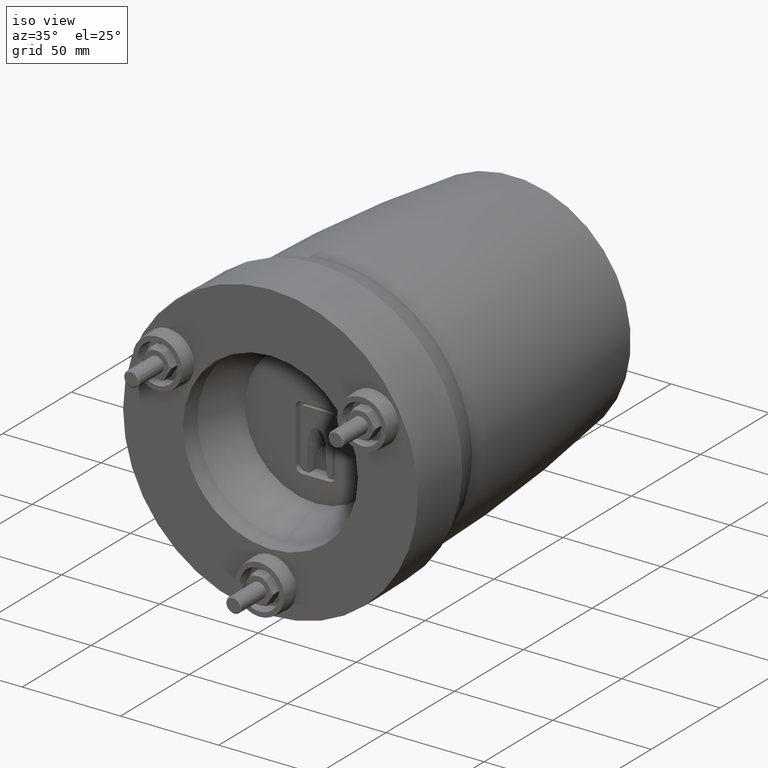
[diagram: clean part render]
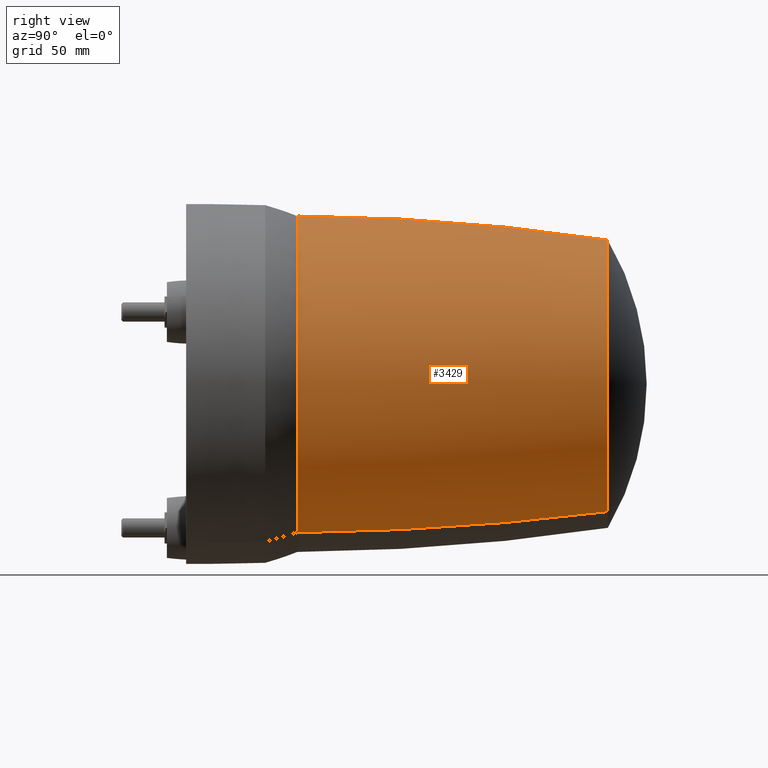
[diagram: tour spotlight — one face highlighted and labeled with its STEP entity id]
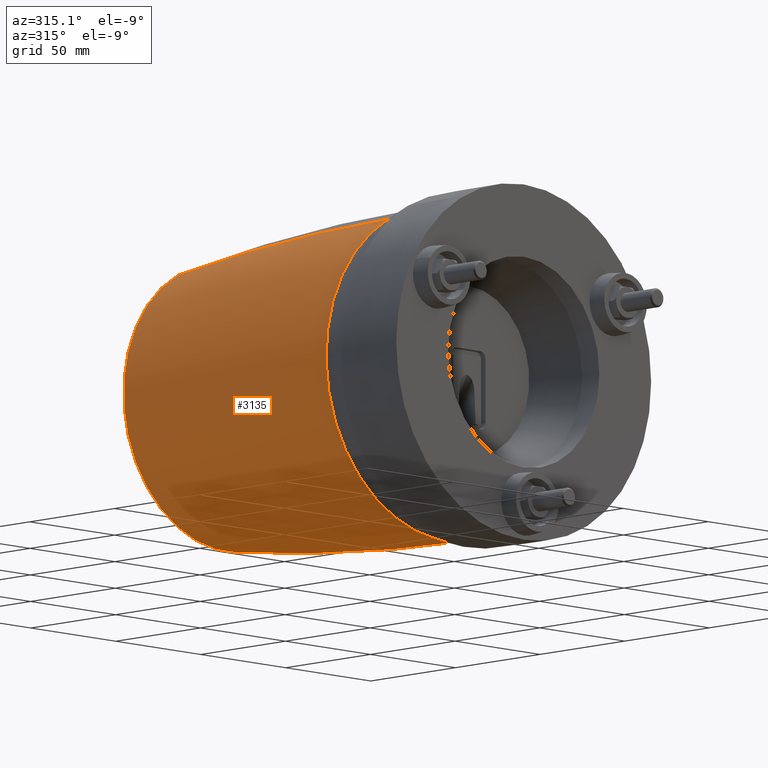
[diagram: tour spotlight — one face highlighted and labeled with its STEP entity id]
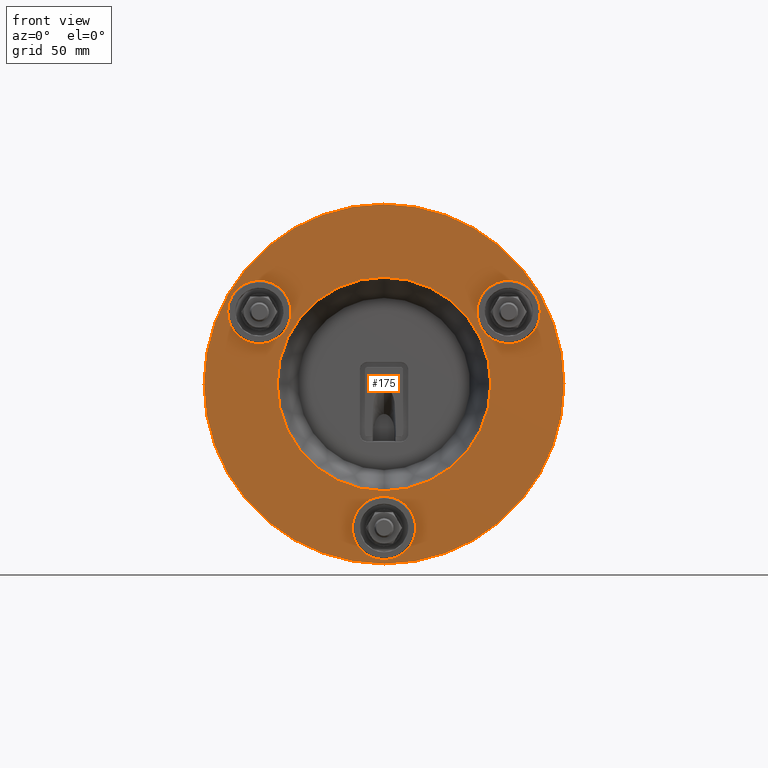
[diagram: tour spotlight — one face highlighted and labeled with its STEP entity id]
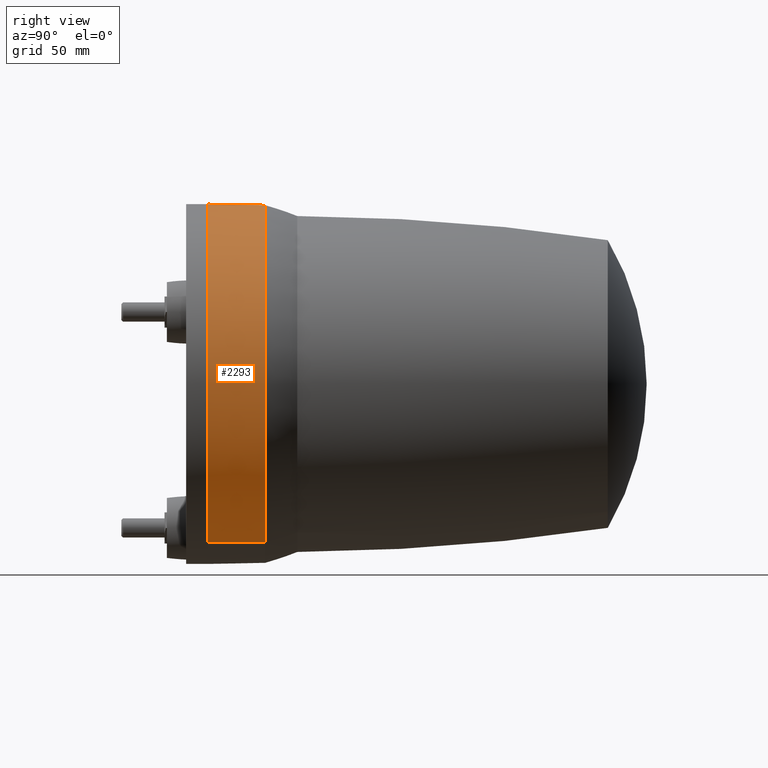
[diagram: tour spotlight — one face highlighted and labeled with its STEP entity id]
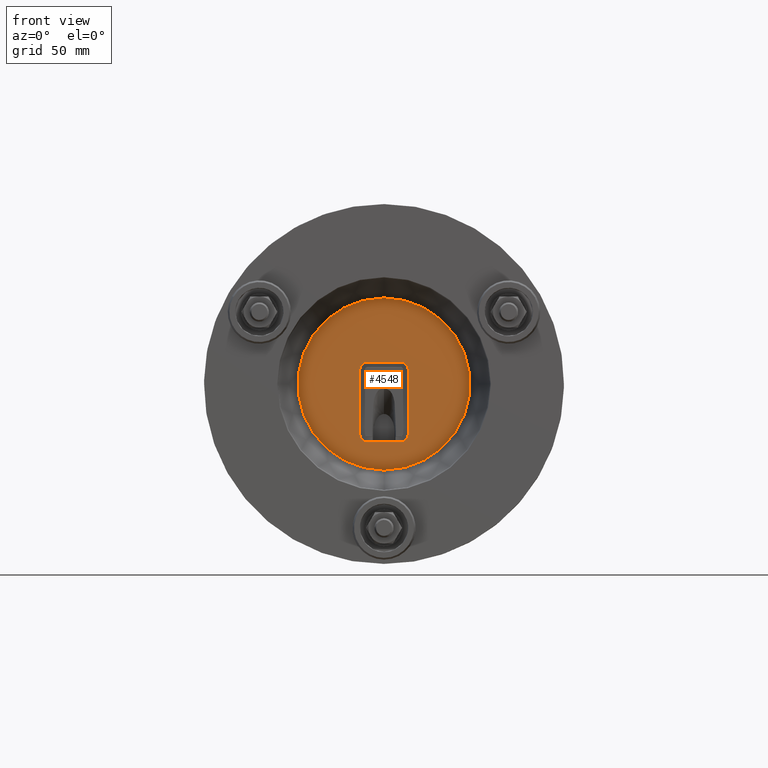
[diagram: tour spotlight — one face highlighted and labeled with its STEP entity id]
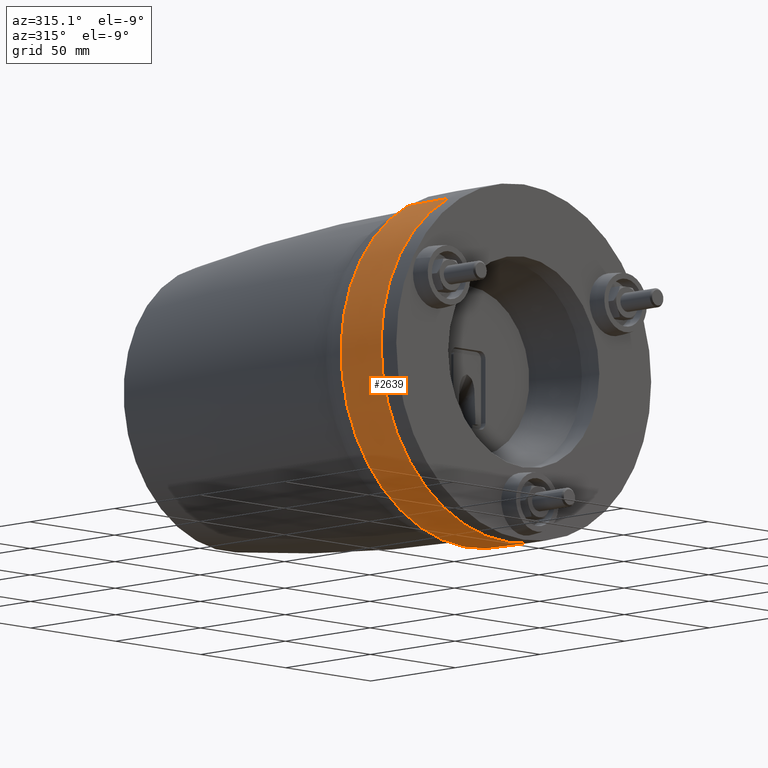
[diagram: tour spotlight — one face highlighted and labeled with its STEP entity id]
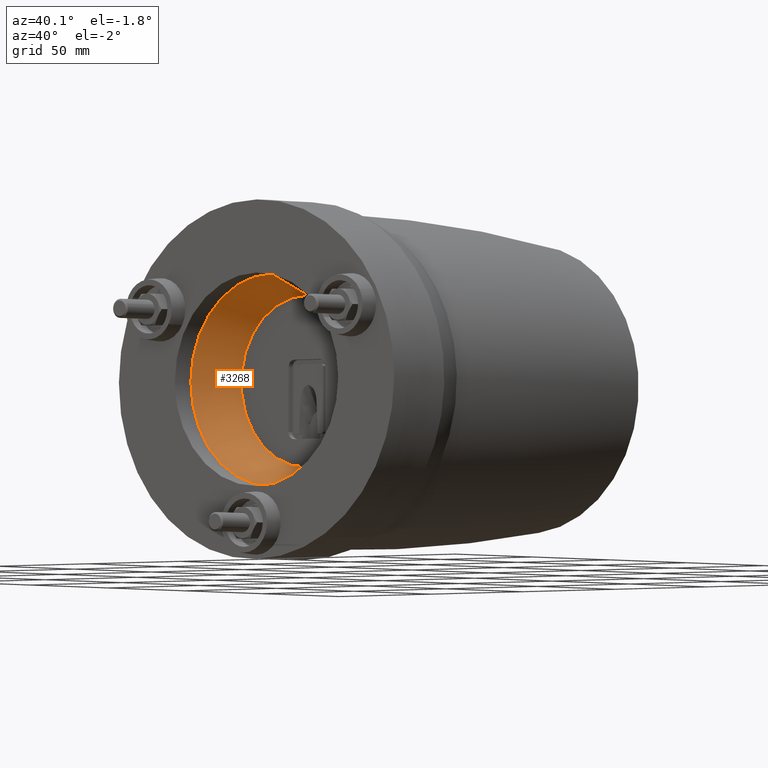
[diagram: tour spotlight — one face highlighted and labeled with its STEP entity id]
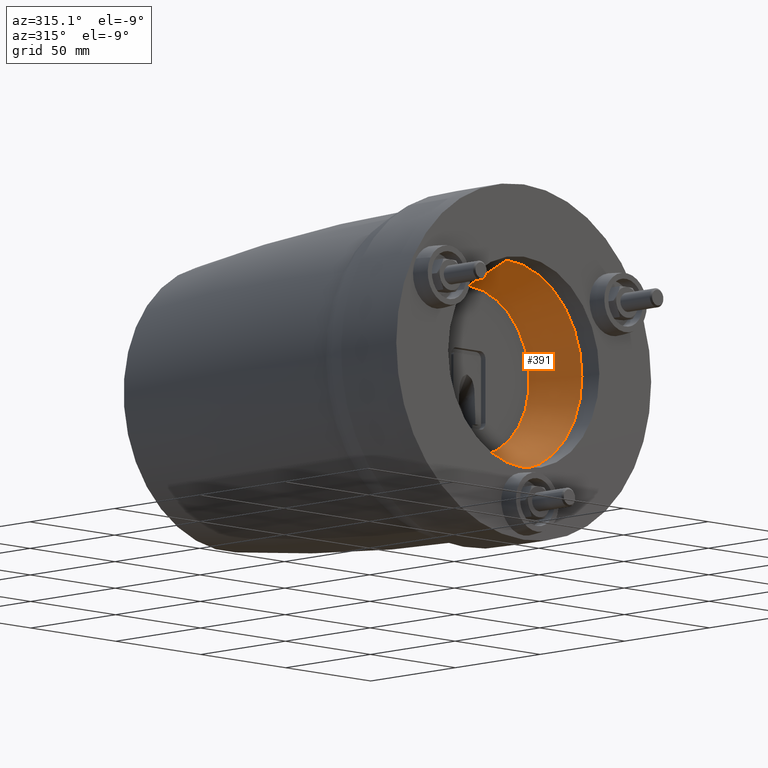
[diagram: tour spotlight — one face highlighted and labeled with its STEP entity id]
A machine part: a face-by-face anatomy tour. The part has 144 B-rep faces; the first image is the clean iso view, then the 8 largest visible faces are spotlighted one at a time (largest first), each with its STEP entity span.

Face 1 — right view, entity #3429. In plain terms, the highlighted toroidal blend (fillet) surface has major radius 929.769 mm and minor (blend) radius 1000 mm.
Definition (entity closure, byte-faithful):
#26 = CARTESIAN_POINT ( 'NONE',  ( -32.95647398094602920, 55.32575010273159677, 61.94328763096225288 ) ) ;
#162 = DIRECTION ( 'NONE',  ( -0.8828256043525187780, -4.930380657631322689E-32, -0.4697009179250238864 ) ) ;
#276 = CARTESIAN_POINT ( 'NONE',  ( 32.95647398094607183, 55.32575010273160387, -61.94328763096225998 ) ) ;
#422 = DIRECTION ( 'NONE',  ( 0.8828256043525186669, 3.697785493223491743E-32, 0.4697009179250239974 ) ) ;
#453 = ORIENTED_EDGE ( 'NONE', *, *, #909, .F. ) ;
#595 = DIRECTION ( 'NONE',  ( -0.4697009179250243305, 0.000000000000000000, 0.8828256043525186669 ) ) ;
#607 = AXIS2_PLACEMENT_3D ( 'NONE', #3545, #2096, #824 ) ;
#824 = DIRECTION ( 'NONE',  ( 0.8828256043525186669, 0.000000000000000000, 0.4697009179250242750 ) ) ;
#909 = EDGE_CURVE ( 'NONE', #1415, #1906, #3112, .T. ) ;
#1300 = CARTESIAN_POINT ( 'NONE',  ( -1.695424884558989830E-15, 184.7802510757699963, 3.825679464475854360E-14 ) ) ;
#1379 = AXIS2_PLACEMENT_3D ( 'NONE', #2356, #2337, #1999 ) ;
#1415 = VERTEX_POINT ( 'NONE', #26 ) ;
#1461 = CIRCLE ( 'NONE', #3921, 1000.000000000000000 ) ;
#1668 = DIRECTION ( 'NONE',  ( 0.000000000000000000, -1.000000000000000000, 0.000000000000000000 ) ) ;
#1906 = VERTEX_POINT ( 'NONE', #2856 ) ;
#1984 = VERTEX_POINT ( 'NONE', #4718 ) ;
#1999 = DIRECTION ( 'NONE',  ( -0.4697009179250238864, -7.762788453611642376E-17, 0.8828256043525188890 ) ) ;
#2002 = CIRCLE ( 'NONE', #607, 70.16480641881085489 ) ;
#2096 = DIRECTION ( 'NONE',  ( 0.000000000000000000, -1.000000000000000000, 0.000000000000000000 ) ) ;
#2220 = EDGE_CURVE ( 'NONE', #4169, #1984, #1461, .T. ) ;
#2337 = DIRECTION ( 'NONE',  ( -3.646188862319169167E-17, 1.000000000000000000, 6.853188408020449877E-17 ) ) ;
#2356 = CARTESIAN_POINT ( 'NONE',  ( 1.352387018892753981E-14, 43.82305169212550311, 9.651393083216828307E-15 ) ) ;
#2459 = CIRCLE ( 'NONE', #3849, 60.24665539804175296 ) ;
#2702 = EDGE_LOOP ( 'NONE', ( #3189, #3064, #4742, #453 ) ) ;
#2754 = CARTESIAN_POINT ( 'NONE',  ( 436.7133693656217019, 43.82305169212557416, -820.8239105476304758 ) ) ;
#2856 = CARTESIAN_POINT ( 'NONE',  ( -28.29790934237279387, 184.7802510757699963, 53.18728996199419612 ) ) ;
#3064 = ORIENTED_EDGE ( 'NONE', *, *, #2220, .T. ) ;
#3112 = CIRCLE ( 'NONE', #3800, 1000.000000000000000 ) ;
#3133 = DIRECTION ( 'NONE',  ( 0.4697009179250239974, 0.000000000000000000, -0.8828256043525186669 ) ) ;
#3189 = ORIENTED_EDGE ( 'NONE', *, *, #4031, .F. ) ;
#3429 = ADVANCED_FACE ( 'NONE', ( #3512 ), #3999, .T. ) ;
#3489 = CARTESIAN_POINT ( 'NONE',  ( -436.7133693656218156, 43.82305169212543206, 820.8239105476303621 ) ) ;
#3512 = FACE_OUTER_BOUND ( 'NONE', #2702, .T. ) ;
#3545 = CARTESIAN_POINT ( 'NONE',  ( 1.352387018892753981E-14, 55.32575010273160387, 9.651393083216828307E-15 ) ) ;
#3800 = AXIS2_PLACEMENT_3D ( 'NONE', #2754, #162, #4619 ) ;
#3849 = AXIS2_PLACEMENT_3D ( 'NONE', #1300, #1668, #595 ) ;
#3921 = AXIS2_PLACEMENT_3D ( 'NONE', #3489, #422, #3133 ) ;
#3999 = TOROIDAL_SURFACE ( 'NONE', #1379, -929.7690353573719904, 1000.000000000000000 ) ;
#4029 = EDGE_CURVE ( 'NONE', #1984, #1906, #2459, .T. ) ;
#4031 = EDGE_CURVE ( 'NONE', #4169, #1415, #2002, .T. ) ;
#4169 = VERTEX_POINT ( 'NONE', #276 ) ;
#4619 = DIRECTION ( 'NONE',  ( -0.4697009179250238864, 0.000000000000000000, 0.8828256043525187780 ) ) ;
#4718 = CARTESIAN_POINT ( 'NONE',  ( 28.29790934237277966, 184.7802510757699963, -53.18728996199416059 ) ) ;
#4742 = ORIENTED_EDGE ( 'NONE', *, *, #4029, .T. ) ;

Face 2 — auxiliary view, entity #3135. In plain terms, the highlighted toroidal blend (fillet) surface has major radius 929.769 mm and minor (blend) radius 1000 mm.
Definition (entity closure, byte-faithful):
#26 = CARTESIAN_POINT ( 'NONE',  ( -32.95647398094602920, 55.32575010273159677, 61.94328763096225288 ) ) ;
#160 = DIRECTION ( 'NONE',  ( -3.646188862319169167E-17, 1.000000000000000000, 6.853188408020449877E-17 ) ) ;
#162 = DIRECTION ( 'NONE',  ( -0.8828256043525187780, -4.930380657631322689E-32, -0.4697009179250238864 ) ) ;
#276 = CARTESIAN_POINT ( 'NONE',  ( 32.95647398094607183, 55.32575010273160387, -61.94328763096225998 ) ) ;
#404 = EDGE_LOOP ( 'NONE', ( #1568, #1052, #3345, #3374 ) ) ;
#422 = DIRECTION ( 'NONE',  ( 0.8828256043525186669, 3.697785493223491743E-32, 0.4697009179250239974 ) ) ;
#475 = FACE_OUTER_BOUND ( 'NONE', #404, .T. ) ;
#793 = EDGE_CURVE ( 'NONE', #1415, #4169, #2796, .T. ) ;
#909 = EDGE_CURVE ( 'NONE', #1415, #1906, #3112, .T. ) ;
#1052 = ORIENTED_EDGE ( 'NONE', *, *, #793, .F. ) ;
#1062 = AXIS2_PLACEMENT_3D ( 'NONE', #2451, #1737, #3926 ) ;
#1140 = TOROIDAL_SURFACE ( 'NONE', #1993, -929.7690353573719904, 1000.000000000000000 ) ;
#1415 = VERTEX_POINT ( 'NONE', #26 ) ;
#1461 = CIRCLE ( 'NONE', #3921, 1000.000000000000000 ) ;
#1555 = CARTESIAN_POINT ( 'NONE',  ( 1.352387018892753981E-14, 55.32575010273160387, 9.651393083216828307E-15 ) ) ;
#1568 = ORIENTED_EDGE ( 'NONE', *, *, #2220, .F. ) ;
#1627 = DIRECTION ( 'NONE',  ( -0.4697009179250238864, -7.762788453611642376E-17, 0.8828256043525188890 ) ) ;
#1737 = DIRECTION ( 'NONE',  ( 0.000000000000000000, -1.000000000000000000, 0.000000000000000000 ) ) ;
#1876 = AXIS2_PLACEMENT_3D ( 'NONE', #1555, #3651, #4061 ) ;
#1906 = VERTEX_POINT ( 'NONE', #2856 ) ;
#1984 = VERTEX_POINT ( 'NONE', #4718 ) ;
#1993 = AXIS2_PLACEMENT_3D ( 'NONE', #4555, #160, #1627 ) ;
#2142 = CIRCLE ( 'NONE', #1062, 60.24665539804175296 ) ;
#2220 = EDGE_CURVE ( 'NONE', #4169, #1984, #1461, .T. ) ;
#2451 = CARTESIAN_POINT ( 'NONE',  ( -1.695424884558989830E-15, 184.7802510757699963, 3.825679464475854360E-14 ) ) ;
#2754 = CARTESIAN_POINT ( 'NONE',  ( 436.7133693656217019, 43.82305169212557416, -820.8239105476304758 ) ) ;
#2796 = CIRCLE ( 'NONE', #1876, 70.16480641881085489 ) ;
#2856 = CARTESIAN_POINT ( 'NONE',  ( -28.29790934237279387, 184.7802510757699963, 53.18728996199419612 ) ) ;
#3112 = CIRCLE ( 'NONE', #3800, 1000.000000000000000 ) ;
#3133 = DIRECTION ( 'NONE',  ( 0.4697009179250239974, 0.000000000000000000, -0.8828256043525186669 ) ) ;
#3135 = ADVANCED_FACE ( 'NONE', ( #475 ), #1140, .T. ) ;
#3345 = ORIENTED_EDGE ( 'NONE', *, *, #909, .T. ) ;
#3374 = ORIENTED_EDGE ( 'NONE', *, *, #3528, .T. ) ;
#3489 = CARTESIAN_POINT ( 'NONE',  ( -436.7133693656218156, 43.82305169212543206, 820.8239105476303621 ) ) ;
#3528 = EDGE_CURVE ( 'NONE', #1906, #1984, #2142, .T. ) ;
#3651 = DIRECTION ( 'NONE',  ( 0.000000000000000000, -1.000000000000000000, 0.000000000000000000 ) ) ;
#3800 = AXIS2_PLACEMENT_3D ( 'NONE', #2754, #162, #4619 ) ;
#3921 = AXIS2_PLACEMENT_3D ( 'NONE', #3489, #422, #3133 ) ;
#3926 = DIRECTION ( 'NONE',  ( -0.4697009179250243305, 0.000000000000000000, 0.8828256043525186669 ) ) ;
#4061 = DIRECTION ( 'NONE',  ( 0.8828256043525186669, 0.000000000000000000, 0.4697009179250242750 ) ) ;
#4169 = VERTEX_POINT ( 'NONE', #276 ) ;
#4555 = CARTESIAN_POINT ( 'NONE',  ( 1.352387018892753981E-14, 43.82305169212550311, 9.651393083216828307E-15 ) ) ;
#4619 = DIRECTION ( 'NONE',  ( -0.4697009179250238864, 0.000000000000000000, 0.8828256043525187780 ) ) ;
#4718 = CARTESIAN_POINT ( 'NONE',  ( 28.29790934237277966, 184.7802510757699963, -53.18728996199416059 ) ) ;

Face 3 — front view, entity #175. In plain terms, the highlighted planar face has unit normal (0, -1, 0).
Definition (entity closure, byte-faithful):
#97 = CIRCLE ( 'NONE', #1739, 13.19999999891632569 ) ;
#122 = EDGE_LOOP ( 'NONE', ( #1503, #4709 ) ) ;
#127 = DIRECTION ( 'NONE',  ( 0.000000000000000000, -1.000000000000000000, 0.000000000000000000 ) ) ;
#175 = ADVANCED_FACE ( 'NONE', ( #4529, #1548, #1598, #791, #1273 ), #3072, .T. ) ;
#176 = ORIENTED_EDGE ( 'NONE', *, *, #2755, .F. ) ;
#242 = ORIENTED_EDGE ( 'NONE', *, *, #3645, .F. ) ;
#434 = CARTESIAN_POINT ( 'NONE',  ( -5.237222008264703315E-13, 9.000000000000000000, 75.00000000000000000 ) ) ;
#458 = ORIENTED_EDGE ( 'NONE', *, *, #2850, .F. ) ;
#519 = DIRECTION ( 'NONE',  ( -6.982962677686271444E-15, 0.000000000000000000, 1.000000000000000000 ) ) ;
#522 = CARTESIAN_POINT ( 'NONE',  ( 5.145373498328652206E-13, 9.000000000000000000, -75.00000000000000000 ) ) ;
#531 = CIRCLE ( 'NONE', #1933, 13.19999999891632214 ) ;
#596 = DIRECTION ( 'NONE',  ( 0.000000000000000000, -1.000000000000000000, 0.000000000000000000 ) ) ;
#600 = CARTESIAN_POINT ( 'NONE',  ( -3.108650705590759055E-13, 9.000000000000000000, 44.51764743816125502 ) ) ;
#664 = DIRECTION ( 'NONE',  ( 0.000000000000000000, -1.000000000000000000, 0.000000000000000000 ) ) ;
#672 = DIRECTION ( 'NONE',  ( 0.000000000000000000, -1.000000000000000000, 0.000000000000000000 ) ) ;
#751 = DIRECTION ( 'NONE',  ( 0.000000000000000000, 1.000000000000000000, 0.000000000000000000 ) ) ;
#791 = FACE_BOUND ( 'NONE', #3805, .T. ) ;
#796 = CARTESIAN_POINT ( 'NONE',  ( 5.111528679990674645E-13, 9.000000000000000000, -73.19999999891635412 ) ) ;
#837 = AXIS2_PLACEMENT_3D ( 'NONE', #3893, #127, #919 ) ;
#843 = VERTEX_POINT ( 'NONE', #796 ) ;
#898 = CIRCLE ( 'NONE', #978, 75.00000000000000000 ) ;
#919 = DIRECTION ( 'NONE',  ( -6.833759148348449675E-15, 0.000000000000000000, 1.000000000000000000 ) ) ;
#921 = DIRECTION ( 'NONE',  ( 0.000000000000000000, -1.000000000000000000, 0.000000000000000000 ) ) ;
#978 = AXIS2_PLACEMENT_3D ( 'NONE', #1917, #751, #1895 ) ;
#1045 = EDGE_CURVE ( 'NONE', #3689, #3352, #97, .T. ) ;
#1070 = DIRECTION ( 'NONE',  ( -6.982962677686271444E-15, 0.000000000000000000, 1.000000000000000000 ) ) ;
#1146 = CARTESIAN_POINT ( 'NONE',  ( 40.52998889804995741, 9.000000000000000000, 23.40000000054229901 ) ) ;
#1273 = FACE_OUTER_BOUND ( 'NONE', #122, .T. ) ;
#1320 = VERTEX_POINT ( 'NONE', #434 ) ;
#1437 = ORIENTED_EDGE ( 'NONE', *, *, #1045, .F. ) ;
#1463 = CIRCLE ( 'NONE', #2931, 44.51764743816124792 ) ;
#1477 = CARTESIAN_POINT ( 'NONE',  ( 3.284191870980262333E-13, 9.000000000000000000, -46.80000000108365299 ) ) ;
#1503 = ORIENTED_EDGE ( 'NONE', *, *, #2615, .F. ) ;
#1548 = FACE_BOUND ( 'NONE', #2316, .T. ) ;
#1563 = AXIS2_PLACEMENT_3D ( 'NONE', #3742, #3765, #4197 ) ;
#1598 = FACE_BOUND ( 'NONE', #4359, .T. ) ;
#1632 = CARTESIAN_POINT ( 'NONE',  ( 3.054132311150044224E-13, 9.000000000000000000, -44.51764743816125502 ) ) ;
#1650 = ORIENTED_EDGE ( 'NONE', *, *, #3731, .F. ) ;
#1684 = CIRCLE ( 'NONE', #4693, 13.19999999891632214 ) ;
#1739 = AXIS2_PLACEMENT_3D ( 'NONE', #2434, #596, #2074 ) ;
#1895 = DIRECTION ( 'NONE',  ( -6.982962677686271444E-15, 0.000000000000000000, 1.000000000000000000 ) ) ;
#1917 = CARTESIAN_POINT ( 'NONE',  ( 0.000000000000000000, 9.000000000000000000, 0.000000000000000000 ) ) ;
#1923 = AXIS2_PLACEMENT_3D ( 'NONE', #4026, #3610, #1070 ) ;
#1933 = AXIS2_PLACEMENT_3D ( 'NONE', #3686, #2268, #2190 ) ;
#2074 = DIRECTION ( 'NONE',  ( -6.833759148348449675E-15, 0.000000000000000000, 1.000000000000000000 ) ) ;
#2077 = DIRECTION ( 'NONE',  ( -6.833759148348452042E-15, 0.000000000000000000, 1.000000000000000000 ) ) ;
#2151 = AXIS2_PLACEMENT_3D ( 'NONE', #4659, #4573, #519 ) ;
#2190 = DIRECTION ( 'NONE',  ( -6.982962677686271444E-15, 0.000000000000000000, 1.000000000000000000 ) ) ;
#2257 = EDGE_CURVE ( 'NONE', #3155, #1320, #3774, .T. ) ;
#2268 = DIRECTION ( 'NONE',  ( 0.000000000000000000, -1.000000000000000000, 0.000000000000000000 ) ) ;
#2316 = EDGE_LOOP ( 'NONE', ( #3549, #1437 ) ) ;
#2377 = CARTESIAN_POINT ( 'NONE',  ( -51.96152422706679630, 9.000000000000000000, 29.99999999999915090 ) ) ;
#2434 = CARTESIAN_POINT ( 'NONE',  ( 51.96152422706600049, 9.000000000000000000, 30.00000000000060041 ) ) ;
#2455 = VERTEX_POINT ( 'NONE', #3484 ) ;
#2458 = EDGE_CURVE ( 'NONE', #3352, #3689, #2924, .T. ) ;
#2615 = EDGE_CURVE ( 'NONE', #1320, #3155, #898, .T. ) ;
#2720 = VERTEX_POINT ( 'NONE', #1632 ) ;
#2755 = EDGE_CURVE ( 'NONE', #3045, #843, #4306, .T. ) ;
#2850 = EDGE_CURVE ( 'NONE', #2455, #4411, #1684, .T. ) ;
#2883 = ORIENTED_EDGE ( 'NONE', *, *, #4371, .F. ) ;
#2910 = VERTEX_POINT ( 'NONE', #600 ) ;
#2919 = AXIS2_PLACEMENT_3D ( 'NONE', #4559, #4229, #3478 ) ;
#2924 = CIRCLE ( 'NONE', #837, 13.19999999891632569 ) ;
#2931 = AXIS2_PLACEMENT_3D ( 'NONE', #3980, #664, #4004 ) ;
#3045 = VERTEX_POINT ( 'NONE', #1477 ) ;
#3072 = PLANE ( 'NONE',  #1563 ) ;
#3155 = VERTEX_POINT ( 'NONE', #522 ) ;
#3160 = CIRCLE ( 'NONE', #2151, 44.51764743816124792 ) ;
#3197 = EDGE_LOOP ( 'NONE', ( #458, #1650 ) ) ;
#3352 = VERTEX_POINT ( 'NONE', #4217 ) ;
#3468 = CIRCLE ( 'NONE', #4635, 13.19999999891632214 ) ;
#3478 = DIRECTION ( 'NONE',  ( -6.982962677686271444E-15, 0.000000000000000000, 1.000000000000000000 ) ) ;
#3484 = CARTESIAN_POINT ( 'NONE',  ( -63.39305955608301701, 9.000000000000000000, 36.59999999945713967 ) ) ;
#3494 = CARTESIAN_POINT ( 'NONE',  ( -40.52998889805056848, 9.000000000000000000, 23.40000000054117635 ) ) ;
#3549 = ORIENTED_EDGE ( 'NONE', *, *, #2458, .F. ) ;
#3610 = DIRECTION ( 'NONE',  ( 0.000000000000000000, 1.000000000000000000, 0.000000000000000000 ) ) ;
#3645 = EDGE_CURVE ( 'NONE', #843, #3045, #531, .T. ) ;
#3686 = CARTESIAN_POINT ( 'NONE',  ( 4.189777606611760026E-13, 9.000000000000000000, -60.00000000000000000 ) ) ;
#3689 = VERTEX_POINT ( 'NONE', #1146 ) ;
#3731 = EDGE_CURVE ( 'NONE', #4411, #2455, #3468, .T. ) ;
#3742 = CARTESIAN_POINT ( 'NONE',  ( -5.237222008264701295E-13, 9.000000000000000000, 75.00000000000000000 ) ) ;
#3765 = DIRECTION ( 'NONE',  ( 0.000000000000000000, -1.000000000000000000, 0.000000000000000000 ) ) ;
#3774 = CIRCLE ( 'NONE', #1923, 75.00000000000000000 ) ;
#3805 = EDGE_LOOP ( 'NONE', ( #4342, #2883 ) ) ;
#3827 = DIRECTION ( 'NONE',  ( -6.833759148348452042E-15, 0.000000000000000000, 1.000000000000000000 ) ) ;
#3893 = CARTESIAN_POINT ( 'NONE',  ( 51.96152422706600049, 9.000000000000000000, 30.00000000000060041 ) ) ;
#3980 = CARTESIAN_POINT ( 'NONE',  ( 0.000000000000000000, 9.000000000000000000, 0.000000000000000000 ) ) ;
#4004 = DIRECTION ( 'NONE',  ( -6.982962677686271444E-15, 0.000000000000000000, 1.000000000000000000 ) ) ;
#4026 = CARTESIAN_POINT ( 'NONE',  ( 0.000000000000000000, 9.000000000000000000, 0.000000000000000000 ) ) ;
#4197 = DIRECTION ( 'NONE',  ( 0.000000000000000000, 0.000000000000000000, -1.000000000000000000 ) ) ;
#4217 = CARTESIAN_POINT ( 'NONE',  ( 63.39305955608204357, 9.000000000000000000, 36.59999999945890181 ) ) ;
#4229 = DIRECTION ( 'NONE',  ( 0.000000000000000000, -1.000000000000000000, 0.000000000000000000 ) ) ;
#4306 = CIRCLE ( 'NONE', #2919, 13.19999999891632214 ) ;
#4342 = ORIENTED_EDGE ( 'NONE', *, *, #4466, .F. ) ;
#4359 = EDGE_LOOP ( 'NONE', ( #242, #176 ) ) ;
#4371 = EDGE_CURVE ( 'NONE', #2720, #2910, #3160, .T. ) ;
#4411 = VERTEX_POINT ( 'NONE', #3494 ) ;
#4466 = EDGE_CURVE ( 'NONE', #2910, #2720, #1463, .T. ) ;
#4529 = FACE_BOUND ( 'NONE', #3197, .T. ) ;
#4559 = CARTESIAN_POINT ( 'NONE',  ( 4.189777606611760026E-13, 9.000000000000000000, -60.00000000000000000 ) ) ;
#4573 = DIRECTION ( 'NONE',  ( 0.000000000000000000, -1.000000000000000000, 0.000000000000000000 ) ) ;
#4635 = AXIS2_PLACEMENT_3D ( 'NONE', #2377, #921, #3827 ) ;
#4659 = CARTESIAN_POINT ( 'NONE',  ( 0.000000000000000000, 9.000000000000000000, 0.000000000000000000 ) ) ;
#4693 = AXIS2_PLACEMENT_3D ( 'NONE', #4719, #672, #2077 ) ;
#4709 = ORIENTED_EDGE ( 'NONE', *, *, #2257, .F. ) ;
#4719 = CARTESIAN_POINT ( 'NONE',  ( -51.96152422706679630, 9.000000000000000000, 29.99999999999915090 ) ) ;

Face 4 — right view, entity #2293. In plain terms, the highlighted conical surface has half-angle 1 deg.
Definition (entity closure, byte-faithful):
#165 = ORIENTED_EDGE ( 'NONE', *, *, #3557, .T. ) ;
#253 = DIRECTION ( 'NONE',  ( -4.370015698547859813E-17, 1.000000000000000000, 8.213655973132098191E-17 ) ) ;
#296 = CARTESIAN_POINT ( 'NONE',  ( -5.237222008264703315E-13, 18.00000000000000000, 75.00000000000000000 ) ) ;
#302 = CIRCLE ( 'NONE', #1779, 75.00000000000000000 ) ;
#368 = CONICAL_SURFACE ( 'NONE', #1692, 75.00000000000002842, 0.01745329251994793759 ) ;
#449 = EDGE_CURVE ( 'NONE', #2312, #3482, #628, .T. ) ;
#576 = DIRECTION ( 'NONE',  ( 6.982962677686271444E-15, 0.000000000000000000, -1.000000000000000000 ) ) ;
#628 = CIRCLE ( 'NONE', #933, 75.00000000000000000 ) ;
#690 = DIRECTION ( 'NONE',  ( -0.008197411323594798460, -0.9998476951563911586, 0.01540743126040462416 ) ) ;
#807 = DIRECTION ( 'NONE',  ( 0.000000000000000000, 1.000000000000000000, 0.000000000000000000 ) ) ;
#851 = ORIENTED_EDGE ( 'NONE', *, *, #2093, .F. ) ;
#868 = CARTESIAN_POINT ( 'NONE',  ( 0.000000000000000000, 18.00000000000000000, 0.000000000000000000 ) ) ;
#933 = AXIS2_PLACEMENT_3D ( 'NONE', #868, #2395, #576 ) ;
#998 = DIRECTION ( 'NONE',  ( -0.4697009179250237754, -9.251858538542967883E-17, 0.8828256043525186669 ) ) ;
#1223 = ORIENTED_EDGE ( 'NONE', *, *, #4594, .F. ) ;
#1446 = LINE ( 'NONE', #2897, #3930 ) ;
#1452 = DIRECTION ( 'NONE',  ( 0.008197411323594883462, -0.9998476951563911586, -0.01540743126040478896 ) ) ;
#1490 = CARTESIAN_POINT ( 'NONE',  ( 0.000000000000000000, 18.00000000000000000, 0.000000000000000000 ) ) ;
#1671 = AXIS2_PLACEMENT_3D ( 'NONE', #3563, #253, #1762 ) ;
#1681 = VERTEX_POINT ( 'NONE', #3168 ) ;
#1692 = AXIS2_PLACEMENT_3D ( 'NONE', #2135, #4708, #998 ) ;
#1762 = DIRECTION ( 'NONE',  ( -0.4697009179250243305, -9.303826183378726515E-17, 0.8828256043525185559 ) ) ;
#1779 = AXIS2_PLACEMENT_3D ( 'NONE', #1490, #807, #4102 ) ;
#2093 = EDGE_CURVE ( 'NONE', #3033, #3482, #4058, .T. ) ;
#2135 = CARTESIAN_POINT ( 'NONE',  ( 1.352387018892753981E-14, 18.00000000000000000, 9.651393083216828307E-15 ) ) ;
#2165 = CARTESIAN_POINT ( 'NONE',  ( 35.22756884437680469, 18.00000000000000000, -66.21192032643891423 ) ) ;
#2293 = ADVANCED_FACE ( 'NONE', ( #4001 ), #368, .T. ) ;
#2312 = VERTEX_POINT ( 'NONE', #296 ) ;
#2395 = DIRECTION ( 'NONE',  ( 0.000000000000000000, 1.000000000000000000, 0.000000000000000000 ) ) ;
#2435 = CIRCLE ( 'NONE', #1671, 74.58107844172275236 ) ;
#2539 = CARTESIAN_POINT ( 'NONE',  ( 35.22756884437680469, 18.00000000000000711, -66.21192032643891423 ) ) ;
#2852 = ORIENTED_EDGE ( 'NONE', *, *, #4492, .T. ) ;
#2897 = CARTESIAN_POINT ( 'NONE',  ( -35.22756884437678337, 17.99999999999999289, 66.21192032643894265 ) ) ;
#3033 = VERTEX_POINT ( 'NONE', #4108 ) ;
#3168 = CARTESIAN_POINT ( 'NONE',  ( -35.03080100391538565, 41.99999999999424460, 65.84208564857654267 ) ) ;
#3414 = ORIENTED_EDGE ( 'NONE', *, *, #449, .T. ) ;
#3482 = VERTEX_POINT ( 'NONE', #2165 ) ;
#3557 = EDGE_CURVE ( 'NONE', #4520, #2312, #302, .T. ) ;
#3563 = CARTESIAN_POINT ( 'NONE',  ( 1.032666367920285900E-14, 41.99999999999425171, 1.566069743300744890E-14 ) ) ;
#3614 = CARTESIAN_POINT ( 'NONE',  ( -35.22756884437678337, 18.00000000000000000, 66.21192032643894265 ) ) ;
#3930 = VECTOR ( 'NONE', #690, 1000.000000000000114 ) ;
#4001 = FACE_OUTER_BOUND ( 'NONE', #4021, .T. ) ;
#4021 = EDGE_LOOP ( 'NONE', ( #851, #1223, #2852, #165, #3414 ) ) ;
#4058 = LINE ( 'NONE', #2539, #4233 ) ;
#4102 = DIRECTION ( 'NONE',  ( 6.982962677686271444E-15, 0.000000000000000000, -1.000000000000000000 ) ) ;
#4108 = CARTESIAN_POINT ( 'NONE',  ( 35.03080100391540697, 41.99999999999425881, -65.84208564857650003 ) ) ;
#4233 = VECTOR ( 'NONE', #1452, 1000.000000000000114 ) ;
#4492 = EDGE_CURVE ( 'NONE', #1681, #4520, #1446, .T. ) ;
#4520 = VERTEX_POINT ( 'NONE', #3614 ) ;
#4594 = EDGE_CURVE ( 'NONE', #1681, #3033, #2435, .T. ) ;
#4708 = DIRECTION ( 'NONE',  ( 4.345606448066109707E-17, -1.000000000000000000, -8.167777605673209464E-17 ) ) ;

Face 5 — front view, entity #4548. In plain terms, the highlighted planar face has unit normal (0, -1, 0).
Definition (entity closure, byte-faithful):
#7 = EDGE_CURVE ( 'NONE', #16, #3629, #3933, .T. ) ;
#16 = VERTEX_POINT ( 'NONE', #1766 ) ;
#169 = DIRECTION ( 'NONE',  ( 0.000000000000000000, 1.000000000000000000, 0.000000000000000000 ) ) ;
#179 = CIRCLE ( 'NONE', #3191, 35.89155288623354778 ) ;
#185 = CARTESIAN_POINT ( 'NONE',  ( -6.338313504608279365E-14, 41.70000000000000284, 9.076825692999999973 ) ) ;
#225 = VERTEX_POINT ( 'NONE', #446 ) ;
#285 = CARTESIAN_POINT ( 'NONE',  ( 0.000000000000000000, 41.70000000000000284, 0.000000000000000000 ) ) ;
#336 = DIRECTION ( 'NONE',  ( -0.000000000000000000, 1.000000000000000000, -0.000000000000000000 ) ) ;
#403 = CARTESIAN_POINT ( 'NONE',  ( 7.000000000000000000, 41.70000000006196927, 6.000000000000000000 ) ) ;
#435 = EDGE_LOOP ( 'NONE', ( #3388, #2548 ) ) ;
#446 = CARTESIAN_POINT ( 'NONE',  ( -6.999999999999829470, 41.70000000003098961, -24.07682569299896613 ) ) ;
#532 = EDGE_CURVE ( 'NONE', #225, #3759, #4510, .T. ) ;
#646 = CARTESIAN_POINT ( 'NONE',  ( -2.506293742487718303E-13, 41.70000000000000284, 35.89155288623354778 ) ) ;
#915 = VECTOR ( 'NONE', #4325, 1000.000000000000000 ) ;
#916 = AXIS2_PLACEMENT_3D ( 'NONE', #3754, #1440, #4464 ) ;
#983 = LINE ( 'NONE', #2148, #2063 ) ;
#999 = EDGE_LOOP ( 'NONE', ( #3776, #2630, #1968, #3318, #2035, #3254, #3799, #2806 ) ) ;
#1002 = DIRECTION ( 'NONE',  ( -0.000000000000000000, 1.000000000000000000, -0.000000000000000000 ) ) ;
#1128 = CARTESIAN_POINT ( 'NONE',  ( 7.000000000000166089, 41.70000000012232988, -24.07682569286145124 ) ) ;
#1178 = VERTEX_POINT ( 'NONE', #1128 ) ;
#1232 = CARTESIAN_POINT ( 'NONE',  ( -7.000000000000011546, 41.70000000005765628, 9.076825692862579231 ) ) ;
#1299 = CARTESIAN_POINT ( 'NONE',  ( 10.07682569300003905, 41.70000000000000284, -7.500000000000000000 ) ) ;
#1303 = DIRECTION ( 'NONE',  ( -1.000000000000000000, 0.000000000000000000, -6.982962677686270655E-15 ) ) ;
#1361 = DIRECTION ( 'NONE',  ( -6.982962677686271444E-15, 0.000000000000000000, 1.000000000000000000 ) ) ;
#1440 = DIRECTION ( 'NONE',  ( -0.000000000000000000, 1.000000000000000000, -0.000000000000000000 ) ) ;
#1462 = EDGE_CURVE ( 'NONE', #2691, #1965, #1734, .T. ) ;
#1609 = DIRECTION ( 'NONE',  ( -0.000000000000000000, 1.000000000000000000, -0.000000000000000000 ) ) ;
#1611 = EDGE_CURVE ( 'NONE', #1965, #2691, #179, .T. ) ;
#1635 = DIRECTION ( 'NONE',  ( -6.982962677686271444E-15, 0.000000000000000000, 1.000000000000000000 ) ) ;
#1673 = CARTESIAN_POINT ( 'NONE',  ( 2.746310837108949170E-13, 41.70000000000000284, -35.89155288623354778 ) ) ;
#1734 = CIRCLE ( 'NONE', #4745, 35.89155288623354778 ) ;
#1766 = CARTESIAN_POINT ( 'NONE',  ( 10.07682569299800335, 41.70000000006115926, -20.99999999999999645 ) ) ;
#1812 = CARTESIAN_POINT ( 'NONE',  ( 7.000000000000139444, 41.70000000012232988, -21.00000000000000000 ) ) ;
#1819 = EDGE_CURVE ( 'NONE', #3295, #3629, #2734, .T. ) ;
#1925 = VERTEX_POINT ( 'NONE', #3241 ) ;
#1965 = VERTEX_POINT ( 'NONE', #646 ) ;
#1968 = ORIENTED_EDGE ( 'NONE', *, *, #2878, .F. ) ;
#1970 = CARTESIAN_POINT ( 'NONE',  ( 0.000000000000000000, 41.70000000000000284, 0.000000000000000000 ) ) ;
#1980 = CIRCLE ( 'NONE', #3985, 3.076825692723002437 ) ;
#2010 = DIRECTION ( 'NONE',  ( 0.000000000000000000, 0.000000000000000000, -1.000000000000000000 ) ) ;
#2011 = EDGE_CURVE ( 'NONE', #3295, #4311, #2804, .T. ) ;
#2021 = DIRECTION ( 'NONE',  ( 6.982962677686270655E-15, 0.000000000000000000, -1.000000000000000000 ) ) ;
#2035 = ORIENTED_EDGE ( 'NONE', *, *, #2168, .F. ) ;
#2063 = VECTOR ( 'NONE', #3625, 1000.000000000000000 ) ;
#2148 = CARTESIAN_POINT ( 'NONE',  ( 1.681275752113769836E-13, 41.70000000000000284, -24.07682569299999997 ) ) ;
#2168 = EDGE_CURVE ( 'NONE', #1925, #3759, #3026, .T. ) ;
#2476 = CARTESIAN_POINT ( 'NONE',  ( 36.10966851200024763, 41.70000000000000284, -36.10966851199974315 ) ) ;
#2487 = DIRECTION ( 'NONE',  ( 0.000000000000000000, 1.000000000000000000, 0.000000000000000000 ) ) ;
#2548 = ORIENTED_EDGE ( 'NONE', *, *, #1462, .F. ) ;
#2630 = ORIENTED_EDGE ( 'NONE', *, *, #4517, .T. ) ;
#2691 = VERTEX_POINT ( 'NONE', #1673 ) ;
#2734 = CIRCLE ( 'NONE', #4518, 3.076825692725114081 ) ;
#2804 = LINE ( 'NONE', #185, #3153 ) ;
#2806 = ORIENTED_EDGE ( 'NONE', *, *, #1819, .T. ) ;
#2847 = FACE_BOUND ( 'NONE', #999, .T. ) ;
#2878 = EDGE_CURVE ( 'NONE', #225, #1178, #983, .T. ) ;
#3017 = CARTESIAN_POINT ( 'NONE',  ( 10.07682569286250818, 41.70000000006196927, 6.000000000000046185 ) ) ;
#3026 = LINE ( 'NONE', #4636, #3845 ) ;
#3067 = AXIS2_PLACEMENT_3D ( 'NONE', #2476, #4293, #4368 ) ;
#3153 = VECTOR ( 'NONE', #1303, 1000.000000000000000 ) ;
#3181 = AXIS2_PLACEMENT_3D ( 'NONE', #3458, #1609, #2010 ) ;
#3191 = AXIS2_PLACEMENT_3D ( 'NONE', #285, #2487, #1361 ) ;
#3241 = CARTESIAN_POINT ( 'NONE',  ( -10.07682569286266805, 41.70000000005765628, 5.999999999999953815 ) ) ;
#3254 = ORIENTED_EDGE ( 'NONE', *, *, #3922, .T. ) ;
#3269 = DIRECTION ( 'NONE',  ( 0.000000000000000000, 0.000000000000000000, -1.000000000000000000 ) ) ;
#3280 = PLANE ( 'NONE',  #3067 ) ;
#3295 = VERTEX_POINT ( 'NONE', #3403 ) ;
#3318 = ORIENTED_EDGE ( 'NONE', *, *, #532, .T. ) ;
#3388 = ORIENTED_EDGE ( 'NONE', *, *, #1611, .F. ) ;
#3403 = CARTESIAN_POINT ( 'NONE',  ( 6.999999999999999112, 41.70000000003098961, 9.076825692998967909 ) ) ;
#3458 = CARTESIAN_POINT ( 'NONE',  ( -6.999999999999849898, 41.70000000006196927, -21.00000000000000000 ) ) ;
#3625 = DIRECTION ( 'NONE',  ( 1.000000000000000000, 0.000000000000000000, 6.982962677686270655E-15 ) ) ;
#3629 = VERTEX_POINT ( 'NONE', #3017 ) ;
#3663 = DIRECTION ( 'NONE',  ( -2.480733085514151749E-14, 0.000000000000000000, -1.000000000000000000 ) ) ;
#3754 = CARTESIAN_POINT ( 'NONE',  ( -7.000000000000000000, 41.70000000005765628, 6.000000000000000000 ) ) ;
#3759 = VERTEX_POINT ( 'NONE', #3851 ) ;
#3776 = ORIENTED_EDGE ( 'NONE', *, *, #7, .F. ) ;
#3799 = ORIENTED_EDGE ( 'NONE', *, *, #2011, .F. ) ;
#3845 = VECTOR ( 'NONE', #2021, 1000.000000000000000 ) ;
#3851 = CARTESIAN_POINT ( 'NONE',  ( -10.07682569286239627, 41.70000000006196927, -21.00000000000001066 ) ) ;
#3922 = EDGE_CURVE ( 'NONE', #1925, #4311, #4090, .T. ) ;
#3933 = LINE ( 'NONE', #1299, #915 ) ;
#3985 = AXIS2_PLACEMENT_3D ( 'NONE', #1812, #1002, #3663 ) ;
#4090 = CIRCLE ( 'NONE', #916, 3.076825692725259742 ) ;
#4293 = DIRECTION ( 'NONE',  ( 0.000000000000000000, -1.000000000000000000, 0.000000000000000000 ) ) ;
#4311 = VERTEX_POINT ( 'NONE', #1232 ) ;
#4320 = FACE_OUTER_BOUND ( 'NONE', #435, .T. ) ;
#4325 = DIRECTION ( 'NONE',  ( -6.982962677686270655E-15, 0.000000000000000000, 1.000000000000000000 ) ) ;
#4368 = DIRECTION ( 'NONE',  ( 0.000000000000000000, 0.000000000000000000, -1.000000000000000000 ) ) ;
#4464 = DIRECTION ( 'NONE',  ( 0.000000000000000000, 0.000000000000000000, -1.000000000000000000 ) ) ;
#4510 = CIRCLE ( 'NONE', #3181, 3.076825692725118522 ) ;
#4517 = EDGE_CURVE ( 'NONE', #16, #1178, #1980, .T. ) ;
#4518 = AXIS2_PLACEMENT_3D ( 'NONE', #403, #336, #3269 ) ;
#4548 = ADVANCED_FACE ( 'NONE', ( #2847, #4320 ), #3280, .T. ) ;
#4636 = CARTESIAN_POINT ( 'NONE',  ( -10.07682569299993958, 41.70000000000000284, -7.500000000000000000 ) ) ;
#4745 = AXIS2_PLACEMENT_3D ( 'NONE', #1970, #169, #1635 ) ;

Face 6 — auxiliary view, entity #2639. In plain terms, the highlighted conical surface has half-angle 1 deg.
Definition (entity closure, byte-faithful):
#62 = AXIS2_PLACEMENT_3D ( 'NONE', #3346, #2603, #3758 ) ;
#73 = FACE_OUTER_BOUND ( 'NONE', #1124, .T. ) ;
#277 = DIRECTION ( 'NONE',  ( -0.4697009179250243305, -9.303826183378726515E-17, 0.8828256043525185559 ) ) ;
#426 = CARTESIAN_POINT ( 'NONE',  ( 0.000000000000000000, 18.00000000000000000, 0.000000000000000000 ) ) ;
#690 = DIRECTION ( 'NONE',  ( -0.008197411323594798460, -0.9998476951563911586, 0.01540743126040462416 ) ) ;
#1035 = EDGE_CURVE ( 'NONE', #3033, #1681, #1110, .T. ) ;
#1086 = DIRECTION ( 'NONE',  ( 0.000000000000000000, 1.000000000000000000, 0.000000000000000000 ) ) ;
#1105 = CIRCLE ( 'NONE', #4126, 75.00000000000000000 ) ;
#1110 = CIRCLE ( 'NONE', #2799, 74.58107844172275236 ) ;
#1124 = EDGE_LOOP ( 'NONE', ( #3365, #1265, #1870, #4238, #3028 ) ) ;
#1265 = ORIENTED_EDGE ( 'NONE', *, *, #2093, .T. ) ;
#1446 = LINE ( 'NONE', #2897, #3930 ) ;
#1452 = DIRECTION ( 'NONE',  ( 0.008197411323594883462, -0.9998476951563911586, -0.01540743126040478896 ) ) ;
#1681 = VERTEX_POINT ( 'NONE', #3168 ) ;
#1726 = EDGE_CURVE ( 'NONE', #3482, #3207, #1105, .T. ) ;
#1870 = ORIENTED_EDGE ( 'NONE', *, *, #1726, .T. ) ;
#2093 = EDGE_CURVE ( 'NONE', #3033, #3482, #4058, .T. ) ;
#2140 = CONICAL_SURFACE ( 'NONE', #3688, 75.00000000000002842, 0.01745329251994793759 ) ;
#2165 = CARTESIAN_POINT ( 'NONE',  ( 35.22756884437680469, 18.00000000000000000, -66.21192032643891423 ) ) ;
#2364 = EDGE_CURVE ( 'NONE', #3207, #4520, #3308, .T. ) ;
#2539 = CARTESIAN_POINT ( 'NONE',  ( 35.22756884437680469, 18.00000000000000711, -66.21192032643891423 ) ) ;
#2567 = DIRECTION ( 'NONE',  ( 6.982962677686271444E-15, 0.000000000000000000, -1.000000000000000000 ) ) ;
#2603 = DIRECTION ( 'NONE',  ( 0.000000000000000000, 1.000000000000000000, 0.000000000000000000 ) ) ;
#2639 = ADVANCED_FACE ( 'NONE', ( #73 ), #2140, .T. ) ;
#2665 = CARTESIAN_POINT ( 'NONE',  ( 5.145373498328652206E-13, 18.00000000000000000, -75.00000000000000000 ) ) ;
#2799 = AXIS2_PLACEMENT_3D ( 'NONE', #4643, #3591, #277 ) ;
#2897 = CARTESIAN_POINT ( 'NONE',  ( -35.22756884437678337, 17.99999999999999289, 66.21192032643894265 ) ) ;
#2934 = DIRECTION ( 'NONE',  ( -0.4697009179250237754, -9.251858538542967883E-17, 0.8828256043525186669 ) ) ;
#3028 = ORIENTED_EDGE ( 'NONE', *, *, #4492, .F. ) ;
#3033 = VERTEX_POINT ( 'NONE', #4108 ) ;
#3168 = CARTESIAN_POINT ( 'NONE',  ( -35.03080100391538565, 41.99999999999424460, 65.84208564857654267 ) ) ;
#3207 = VERTEX_POINT ( 'NONE', #2665 ) ;
#3308 = CIRCLE ( 'NONE', #62, 75.00000000000000000 ) ;
#3341 = CARTESIAN_POINT ( 'NONE',  ( 1.352387018892753981E-14, 18.00000000000000000, 9.651393083216828307E-15 ) ) ;
#3346 = CARTESIAN_POINT ( 'NONE',  ( 0.000000000000000000, 18.00000000000000000, 0.000000000000000000 ) ) ;
#3364 = DIRECTION ( 'NONE',  ( 4.345606448066109707E-17, -1.000000000000000000, -8.167777605673209464E-17 ) ) ;
#3365 = ORIENTED_EDGE ( 'NONE', *, *, #1035, .F. ) ;
#3482 = VERTEX_POINT ( 'NONE', #2165 ) ;
#3591 = DIRECTION ( 'NONE',  ( -4.370015698547859813E-17, 1.000000000000000000, 8.213655973132098191E-17 ) ) ;
#3614 = CARTESIAN_POINT ( 'NONE',  ( -35.22756884437678337, 18.00000000000000000, 66.21192032643894265 ) ) ;
#3688 = AXIS2_PLACEMENT_3D ( 'NONE', #3341, #3364, #2934 ) ;
#3758 = DIRECTION ( 'NONE',  ( 6.982962677686271444E-15, 0.000000000000000000, -1.000000000000000000 ) ) ;
#3930 = VECTOR ( 'NONE', #690, 1000.000000000000114 ) ;
#4058 = LINE ( 'NONE', #2539, #4233 ) ;
#4108 = CARTESIAN_POINT ( 'NONE',  ( 35.03080100391540697, 41.99999999999425881, -65.84208564857650003 ) ) ;
#4126 = AXIS2_PLACEMENT_3D ( 'NONE', #426, #1086, #2567 ) ;
#4233 = VECTOR ( 'NONE', #1452, 1000.000000000000114 ) ;
#4238 = ORIENTED_EDGE ( 'NONE', *, *, #2364, .T. ) ;
#4492 = EDGE_CURVE ( 'NONE', #1681, #4520, #1446, .T. ) ;
#4520 = VERTEX_POINT ( 'NONE', #3614 ) ;
#4643 = CARTESIAN_POINT ( 'NONE',  ( 1.032666367920285900E-14, 41.99999999999425171, 1.566069743300744890E-14 ) ) ;

Face 7 — auxiliary view, entity #3268. In plain terms, the highlighted conical surface has half-angle 20 deg.
Definition (entity closure, byte-faithful):
#145 = VECTOR ( 'NONE', #4759, 1000.000000000000000 ) ;
#169 = DIRECTION ( 'NONE',  ( 0.000000000000000000, 1.000000000000000000, 0.000000000000000000 ) ) ;
#290 = VECTOR ( 'NONE', #2188, 1000.000000000000000 ) ;
#393 = CIRCLE ( 'NONE', #1015, 44.17000643500000479 ) ;
#444 = DIRECTION ( 'NONE',  ( -6.982962677686270655E-15, 0.000000000000000000, 1.000000000000000000 ) ) ;
#646 = CARTESIAN_POINT ( 'NONE',  ( -2.506293742487718303E-13, 41.70000000000000284, 35.89155288623354778 ) ) ;
#668 = CARTESIAN_POINT ( 'NONE',  ( 3.030282407088734246E-13, 18.95513580500000117, -44.17000643500000479 ) ) ;
#686 = VERTEX_POINT ( 'NONE', #774 ) ;
#774 = CARTESIAN_POINT ( 'NONE',  ( 3.042207359119388982E-13, 18.95513580500000117, -44.17000643499999768 ) ) ;
#982 = EDGE_CURVE ( 'NONE', #686, #2831, #393, .T. ) ;
#1015 = AXIS2_PLACEMENT_3D ( 'NONE', #3885, #4273, #1328 ) ;
#1328 = DIRECTION ( 'NONE',  ( 6.982962677686270655E-15, 0.000000000000000000, -1.000000000000000000 ) ) ;
#1443 = CARTESIAN_POINT ( 'NONE',  ( -3.084375064087674541E-13, 18.95513580500000117, 44.17000643500000479 ) ) ;
#1462 = EDGE_CURVE ( 'NONE', #2691, #1965, #1734, .T. ) ;
#1483 = EDGE_LOOP ( 'NONE', ( #4419, #3019, #2336, #1947 ) ) ;
#1635 = DIRECTION ( 'NONE',  ( -6.982962677686271444E-15, 0.000000000000000000, 1.000000000000000000 ) ) ;
#1673 = CARTESIAN_POINT ( 'NONE',  ( 2.746310837108949170E-13, 41.70000000000000284, -35.89155288623354778 ) ) ;
#1734 = CIRCLE ( 'NONE', #4745, 35.89155288623354778 ) ;
#1947 = ORIENTED_EDGE ( 'NONE', *, *, #982, .F. ) ;
#1965 = VERTEX_POINT ( 'NONE', #646 ) ;
#1970 = CARTESIAN_POINT ( 'NONE',  ( 0.000000000000000000, 41.70000000000000284, 0.000000000000000000 ) ) ;
#2188 = DIRECTION ( 'NONE',  ( -2.388313895696850180E-15, -0.9396926207944149567, 0.3420201433022970194 ) ) ;
#2250 = EDGE_CURVE ( 'NONE', #1965, #2831, #2894, .T. ) ;
#2336 = ORIENTED_EDGE ( 'NONE', *, *, #2250, .T. ) ;
#2616 = AXIS2_PLACEMENT_3D ( 'NONE', #2945, #4105, #444 ) ;
#2636 = FACE_OUTER_BOUND ( 'NONE', #1483, .T. ) ;
#2691 = VERTEX_POINT ( 'NONE', #1673 ) ;
#2831 = VERTEX_POINT ( 'NONE', #3962 ) ;
#2854 = LINE ( 'NONE', #668, #145 ) ;
#2894 = LINE ( 'NONE', #1443, #290 ) ;
#2945 = CARTESIAN_POINT ( 'NONE',  ( 0.000000000000000000, 18.95513580500000117, 0.000000000000000000 ) ) ;
#3019 = ORIENTED_EDGE ( 'NONE', *, *, #1462, .T. ) ;
#3268 = ADVANCED_FACE ( 'NONE', ( #2636 ), #3385, .F. ) ;
#3385 = CONICAL_SURFACE ( 'NONE', #2616, 44.17000643500000479, 0.3490658503739943463 ) ;
#3885 = CARTESIAN_POINT ( 'NONE',  ( 0.000000000000000000, 18.95513580500000117, 0.000000000000000000 ) ) ;
#3962 = CARTESIAN_POINT ( 'NONE',  ( -3.096512884839216798E-13, 18.95513580500000117, 44.17000643499999768 ) ) ;
#4105 = DIRECTION ( 'NONE',  ( 0.000000000000000000, -1.000000000000000000, 0.000000000000000000 ) ) ;
#4151 = EDGE_CURVE ( 'NONE', #2691, #686, #2854, .T. ) ;
#4273 = DIRECTION ( 'NONE',  ( 0.000000000000000000, 1.000000000000000000, 0.000000000000000000 ) ) ;
#4419 = ORIENTED_EDGE ( 'NONE', *, *, #4151, .F. ) ;
#4745 = AXIS2_PLACEMENT_3D ( 'NONE', #1970, #169, #1635 ) ;
#4759 = DIRECTION ( 'NONE',  ( 2.346428508322942478E-15, -0.9396926207944149567, -0.3420201433022970194 ) ) ;

Face 8 — auxiliary view, entity #391. In plain terms, the highlighted conical surface has half-angle 20 deg.
Definition (entity closure, byte-faithful):
#47 = DIRECTION ( 'NONE',  ( 0.000000000000000000, -1.000000000000000000, 0.000000000000000000 ) ) ;
#145 = VECTOR ( 'NONE', #4759, 1000.000000000000000 ) ;
#150 = EDGE_LOOP ( 'NONE', ( #3303, #2328, #848, #516 ) ) ;
#179 = CIRCLE ( 'NONE', #3191, 35.89155288623354778 ) ;
#267 = EDGE_CURVE ( 'NONE', #2831, #686, #4024, .T. ) ;
#285 = CARTESIAN_POINT ( 'NONE',  ( 0.000000000000000000, 41.70000000000000284, 0.000000000000000000 ) ) ;
#290 = VECTOR ( 'NONE', #2188, 1000.000000000000000 ) ;
#391 = ADVANCED_FACE ( 'NONE', ( #4119 ), #714, .F. ) ;
#516 = ORIENTED_EDGE ( 'NONE', *, *, #2250, .F. ) ;
#646 = CARTESIAN_POINT ( 'NONE',  ( -2.506293742487718303E-13, 41.70000000000000284, 35.89155288623354778 ) ) ;
#668 = CARTESIAN_POINT ( 'NONE',  ( 3.030282407088734246E-13, 18.95513580500000117, -44.17000643500000479 ) ) ;
#686 = VERTEX_POINT ( 'NONE', #774 ) ;
#714 = CONICAL_SURFACE ( 'NONE', #3419, 44.17000643500000479, 0.3490658503739943463 ) ;
#774 = CARTESIAN_POINT ( 'NONE',  ( 3.042207359119388982E-13, 18.95513580500000117, -44.17000643499999768 ) ) ;
#848 = ORIENTED_EDGE ( 'NONE', *, *, #267, .F. ) ;
#1170 = DIRECTION ( 'NONE',  ( -6.982962677686270655E-15, 0.000000000000000000, 1.000000000000000000 ) ) ;
#1361 = DIRECTION ( 'NONE',  ( -6.982962677686271444E-15, 0.000000000000000000, 1.000000000000000000 ) ) ;
#1443 = CARTESIAN_POINT ( 'NONE',  ( -3.084375064087674541E-13, 18.95513580500000117, 44.17000643500000479 ) ) ;
#1611 = EDGE_CURVE ( 'NONE', #1965, #2691, #179, .T. ) ;
#1673 = CARTESIAN_POINT ( 'NONE',  ( 2.746310837108949170E-13, 41.70000000000000284, -35.89155288623354778 ) ) ;
#1738 = CARTESIAN_POINT ( 'NONE',  ( 0.000000000000000000, 18.95513580500000117, 0.000000000000000000 ) ) ;
#1965 = VERTEX_POINT ( 'NONE', #646 ) ;
#2188 = DIRECTION ( 'NONE',  ( -2.388313895696850180E-15, -0.9396926207944149567, 0.3420201433022970194 ) ) ;
#2250 = EDGE_CURVE ( 'NONE', #1965, #2831, #2894, .T. ) ;
#2328 = ORIENTED_EDGE ( 'NONE', *, *, #4151, .T. ) ;
#2385 = DIRECTION ( 'NONE',  ( 0.000000000000000000, 1.000000000000000000, 0.000000000000000000 ) ) ;
#2487 = DIRECTION ( 'NONE',  ( 0.000000000000000000, 1.000000000000000000, 0.000000000000000000 ) ) ;
#2691 = VERTEX_POINT ( 'NONE', #1673 ) ;
#2831 = VERTEX_POINT ( 'NONE', #3962 ) ;
#2854 = LINE ( 'NONE', #668, #145 ) ;
#2894 = LINE ( 'NONE', #1443, #290 ) ;
#3191 = AXIS2_PLACEMENT_3D ( 'NONE', #285, #2487, #1361 ) ;
#3303 = ORIENTED_EDGE ( 'NONE', *, *, #1611, .T. ) ;
#3417 = CARTESIAN_POINT ( 'NONE',  ( 0.000000000000000000, 18.95513580500000117, 0.000000000000000000 ) ) ;
#3419 = AXIS2_PLACEMENT_3D ( 'NONE', #3417, #47, #1170 ) ;
#3880 = DIRECTION ( 'NONE',  ( 6.982962677686270655E-15, 0.000000000000000000, -1.000000000000000000 ) ) ;
#3962 = CARTESIAN_POINT ( 'NONE',  ( -3.096512884839216798E-13, 18.95513580500000117, 44.17000643499999768 ) ) ;
#4024 = CIRCLE ( 'NONE', #4654, 44.17000643500000479 ) ;
#4119 = FACE_OUTER_BOUND ( 'NONE', #150, .T. ) ;
#4151 = EDGE_CURVE ( 'NONE', #2691, #686, #2854, .T. ) ;
#4654 = AXIS2_PLACEMENT_3D ( 'NONE', #1738, #2385, #3880 ) ;
#4759 = DIRECTION ( 'NONE',  ( 2.346428508322942478E-15, -0.9396926207944149567, -0.3420201433022970194 ) ) ;